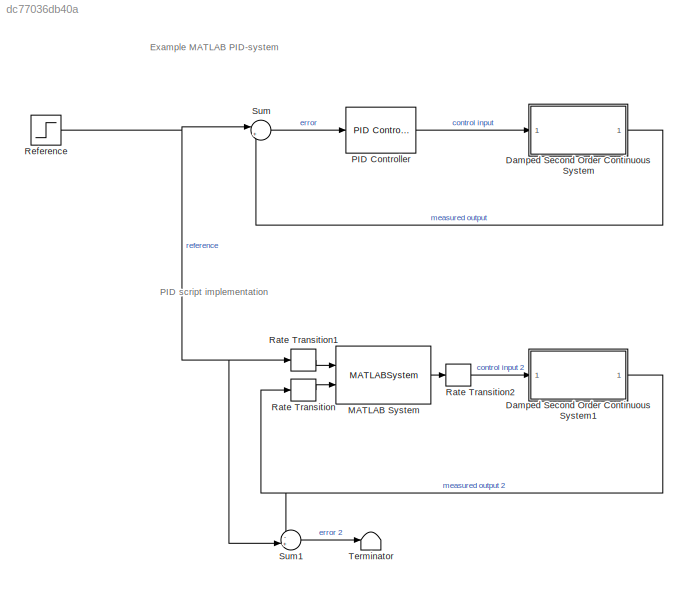
MODEL slx_dc77036db40a
KIND model
CONFIG AbsTol = auto
CONFIG EnableMultiTasking = on
CONFIG FixedStep = auto
CONFIG MaxStep = 0.01
CONFIG MinStep = auto
CONFIG RelTol = 1e-4
CONFIG SampleTimeConstraint = Unconstrained
CONFIG Solver = VariableStepAuto
CONFIG SolverName = VariableStepAuto
CONFIG StartTime = 0.0
CONFIG StopTime = 3
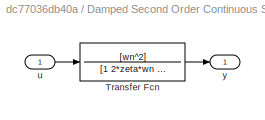
BLOCK [SubSystem] Damped Second Order Continuous System
  Ports = [1, 1]
  RequestExecContextInheritance = off
BLOCK [TransferFcn] Damped Second Order Continuous System/Transfer Fcn
  Denominator = [1 2*zeta*wn wn^2]
  Numerator = [wn^2]
BLOCK [Inport] Damped Second Order Continuous System/u
  IconDisplay = Port number
BLOCK [Outport] Damped Second Order Continuous System/y
  IconDisplay = Port number
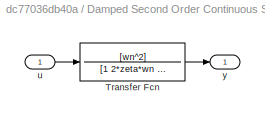
BLOCK [SubSystem] Damped Second Order Continuous System1
  Ports = [1, 1]
  RequestExecContextInheritance = off
BLOCK [TransferFcn] Damped Second Order Continuous System1/Transfer Fcn
  Denominator = [1 2*zeta*wn wn^2]
  Numerator = [wn^2]
BLOCK [Inport] Damped Second Order Continuous System1/u
  IconDisplay = Port number
BLOCK [Outport] Damped Second Order Continuous System1/y
  IconDisplay = Port number
BLOCK [MATLABSystem] MATLAB System
  Kaw = 1
  Kd = 0.02
  Ki = 22
  Kp = 1.2
  MaskDisplay = disp('DiscretePID');\nport_label('input',1,'setpoint');\nport_label('input',2,'meas');\nport_label('output',1,'y');
  MaskType = DiscretePID
  N = 20
  Ports = [2, 1]
  SimulateUsing = Code generation
  System = DiscretePID
  T = 1e-3
  lowerLimit = -1
  lowerLimitInt = -1
  upperLimit = 1
  upperLimitInt = 1
BLOCK [Reference] PID Controller  REF=simulink/Continuous/PID Controller
  Ports = [1, 1]
  SourceBlock = simulink/Continuous/PID Controller
  SourceProductBaseCode = SL
  SourceProductName = Simulink
  SourceType = PID 1dof
BLOCK [RateTransition] Rate Transition
  OutPortSampleTime = 1e-3
BLOCK [RateTransition] Rate Transition1
  OutPortSampleTime = 1e-3
BLOCK [RateTransition] Rate Transition2
  OutPortSampleTime = 1e-3
BLOCK [Step] Reference
  SampleTime = 0
BLOCK [Sum] Sum
  IconShape = round
  InputSameDT = off
  Inputs = |+-
  OutDataTypeStr = Inherit: Inherit via internal rule
  Ports = [2, 1]
  SaturateOnIntegerOverflow = off
BLOCK [Sum] Sum1
  IconShape = round
  InputSameDT = off
  Inputs = -+|
  OutDataTypeStr = Inherit: Inherit via internal rule
  Ports = [2, 1]
  SaturateOnIntegerOverflow = off
BLOCK [Terminator] Terminator
ANNOTATION (root): Example MATLAB PID-system
ANNOTATION (root): PID script implementation
LINE Damped Second Order Continuous System/Transfer Fcn:1 -> Damped Second Order Continuous System/y:1
LINE Damped Second Order Continuous System/u:1 -> Damped Second Order Continuous System/Transfer Fcn:1
LINE Damped Second Order Continuous System1/Transfer Fcn:1 -> Damped Second Order Continuous System1/y:1
LINE Damped Second Order Continuous System1/u:1 -> Damped Second Order Continuous System1/Transfer Fcn:1
NET Damped Second Order Continuous System1:1 -> Rate Transition:1, Sum1:1
LINE Damped Second Order Continuous System:1 -> Sum:2
LINE MATLAB System:1 -> Rate Transition2:1
LINE PID Controller:1 -> Damped Second Order Continuous System:1
LINE Rate Transition1:1 -> MATLAB System:1
LINE Rate Transition2:1 -> Damped Second Order Continuous System1:1
LINE Rate Transition:1 -> MATLAB System:2
NET Reference:1 -> Rate Transition1:1, Sum1:2, Sum:1
LINE Sum1:1 -> Terminator:1
LINE Sum:1 -> PID Controller:1
note: NET lines group one-source signal fan-out (src -> all destinations, sorted); 1:1 wires keep LINE
